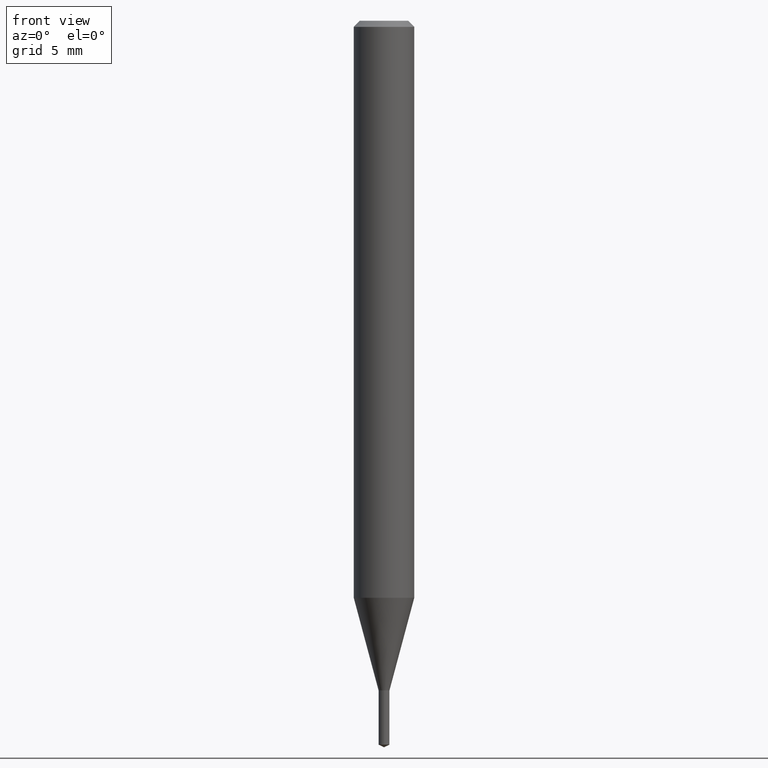
[diagram: clean part render]
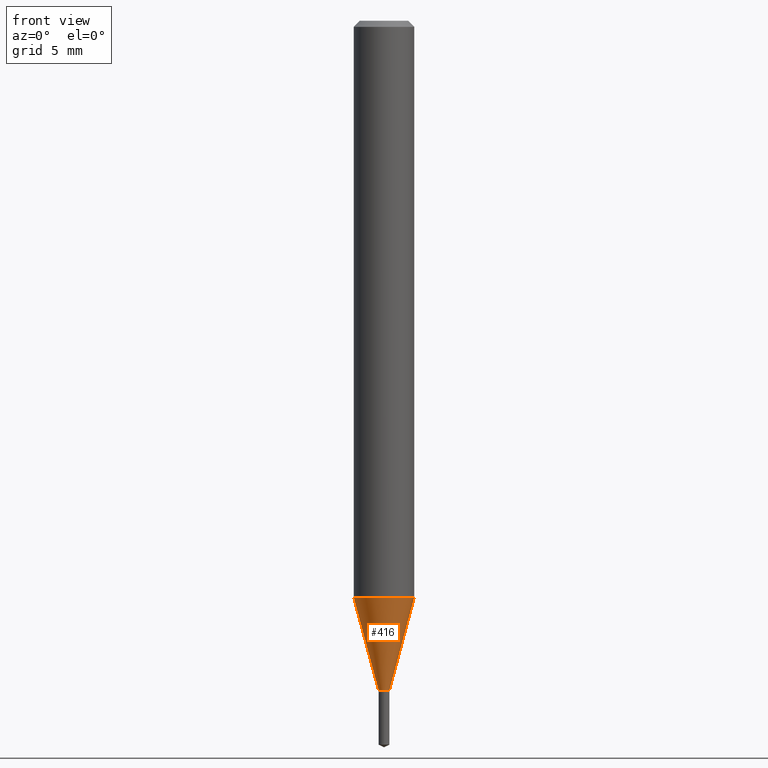
[diagram: same view with one face highlighted and labeled with its STEP entity id]
A machine part, front view. The second image highlights one B-rep face of the part: STEP entity #416.
In plain terms, the highlighted conical surface has half-angle 15 deg.
Its self-contained STEP definition (entity closure, byte-faithful):
#5 = VERTEX_POINT ( 'NONE', #419 ) ;
#8 = LINE ( 'NONE', #307, #249 ) ;
#31 = VERTEX_POINT ( 'NONE', #74 ) ;
#35 = DIRECTION ( 'NONE',  ( -2.445468806185136597E-29, 3.491481338843145583E-15, 1.000000000000000000 ) ) ;
#41 = CIRCLE ( 'NONE', #56, 0.01124999999999999958 ) ;
#43 = AXIS2_PLACEMENT_3D ( 'NONE', #253, #35, #482 ) ;
#56 = AXIS2_PLACEMENT_3D ( 'NONE', #304, #420, #125 ) ;
#68 = DIRECTION ( 'NONE',  ( 1.000000000000000000, -6.982962677686224901E-15, 0.000000000000000000 ) ) ;
#70 = VERTEX_POINT ( 'NONE', #190 ) ;
#74 = CARTESIAN_POINT ( 'NONE',  ( -0.01124999999999999958, -4.357911297963569388E-15, -1.382600000000000273 ) ) ;
#75 = EDGE_CURVE ( 'NONE', #478, #70, #258, .T. ) ;
#105 = ORIENTED_EDGE ( 'NONE', *, *, #75, .F. ) ;
#125 = DIRECTION ( 'NONE',  ( 1.000000000000000000, -6.982962677686224901E-15, 0.000000000000000000 ) ) ;
#130 = CARTESIAN_POINT ( 'NONE',  ( -0.06250000000000013878, -3.715425619534625420E-15, -1.191332396112100511 ) ) ;
#140 = FACE_OUTER_BOUND ( 'NONE', #261, .T. ) ;
#154 = ORIENTED_EDGE ( 'NONE', *, *, #240, .T. ) ;
#156 = ORIENTED_EDGE ( 'NONE', *, *, #387, .T. ) ;
#190 = CARTESIAN_POINT ( 'NONE',  ( 0.06250000000000013878, -4.595949996740082072E-15, -1.191332396112100511 ) ) ;
#218 = CONICAL_SURFACE ( 'NONE', #343, 0.01124999999999999958, 0.2617993877991569573 ) ;
#226 = VECTOR ( 'NONE', #265, 39.37007874015748854 ) ;
#240 = EDGE_CURVE ( 'NONE', #31, #5, #41, .T. ) ;
#249 = VECTOR ( 'NONE', #270, 39.37007874015748854 ) ;
#253 = CARTESIAN_POINT ( 'NONE',  ( 2.913366212489936565E-29, -4.159514829384688825E-15, -1.191332396112100511 ) ) ;
#258 = CIRCLE ( 'NONE', #43, 0.06250000000000013878 ) ;
#261 = EDGE_LOOP ( 'NONE', ( #295, #154, #156, #105 ) ) ;
#265 = DIRECTION ( 'NONE',  ( -0.2588190451025279559, 5.211531920934590485E-15, 0.9659258262890662028 ) ) ;
#270 = DIRECTION ( 'NONE',  ( 0.2588190451025279559, 1.565188264969568522E-15, 0.9659258262890662028 ) ) ;
#275 = EDGE_CURVE ( 'NONE', #31, #478, #342, .T. ) ;
#295 = ORIENTED_EDGE ( 'NONE', *, *, #275, .F. ) ;
#304 = CARTESIAN_POINT ( 'NONE',  ( 3.381105171431570264E-29, -4.827322099084534150E-15, -1.382600000000000273 ) ) ;
#307 = CARTESIAN_POINT ( 'NONE',  ( 0.01124999999999999958, -4.905880429208504178E-15, -1.382600000000000273 ) ) ;
#323 = CARTESIAN_POINT ( 'NONE',  ( 3.381105171431570264E-29, -4.827322099084534150E-15, -1.382600000000000273 ) ) ;
#342 = LINE ( 'NONE', #353, #226 ) ;
#343 = AXIS2_PLACEMENT_3D ( 'NONE', #323, #411, #68 ) ;
#353 = CARTESIAN_POINT ( 'NONE',  ( -0.01124999999999999958, -4.747386041311522217E-15, -1.382600000000000273 ) ) ;
#387 = EDGE_CURVE ( 'NONE', #5, #70, #8, .T. ) ;
#411 = DIRECTION ( 'NONE',  ( -2.445468806185136597E-29, 3.491481338843145583E-15, 1.000000000000000000 ) ) ;
#416 = ADVANCED_FACE ( 'NONE', ( #140 ), #218, .T. ) ;
#419 = CARTESIAN_POINT ( 'NONE',  ( 0.01124999999999999958, -4.905880429208504178E-15, -1.382600000000000273 ) ) ;
#420 = DIRECTION ( 'NONE',  ( -2.445468806185136597E-29, 3.491481338843145583E-15, 1.000000000000000000 ) ) ;
#478 = VERTEX_POINT ( 'NONE', #130 ) ;
#482 = DIRECTION ( 'NONE',  ( 1.000000000000000000, -6.982962677686270655E-15, 0.000000000000000000 ) ) ;